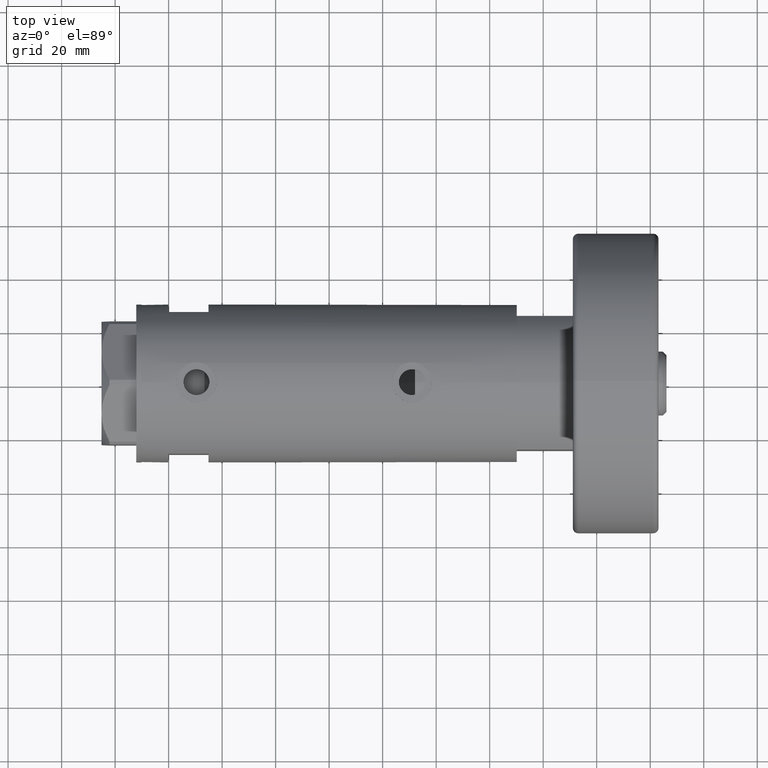
[diagram: clean part render]
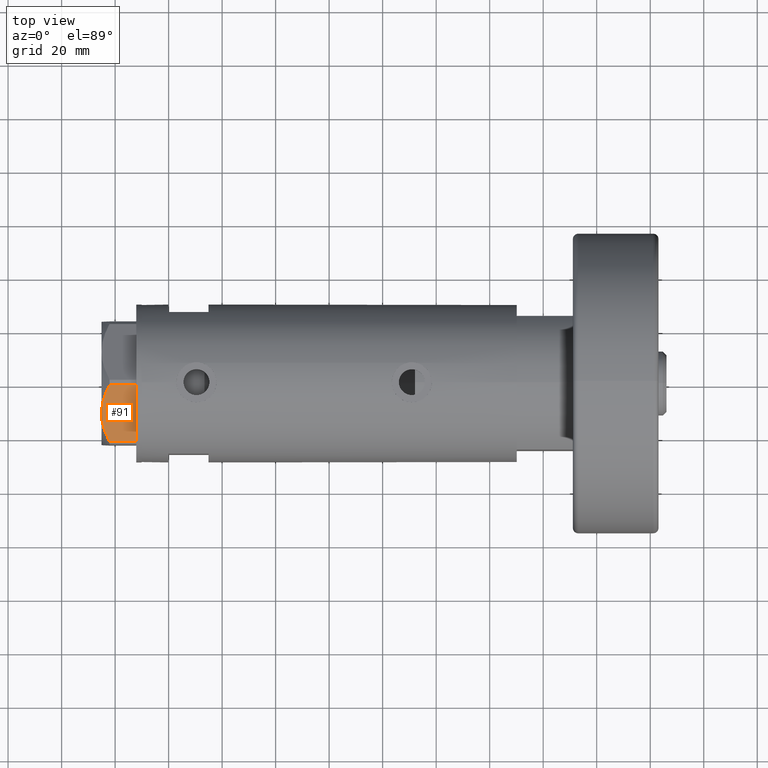
[diagram: same view with one face highlighted and labeled with its STEP entity id]
A machine part, top view. The second image highlights one B-rep face of the part: STEP entity #91.
In plain terms, the highlighted planar face has unit normal (-0, 0.5, -0.866).
Its self-contained STEP definition (entity closure, byte-faithful):
#91 = ADVANCED_FACE ( 'NONE', ( #4126 ), #4102, .F. ) ;
#138 = ORIENTED_EDGE ( 'NONE', *, *, #5906, .T. ) ;
#149 = VERTEX_POINT ( 'NONE', #2462 ) ;
#191 = DIRECTION ( 'NONE',  ( -0.8660254037844415942, 0.4999999999999950040, 0.000000000000000000 ) ) ;
#237 = CARTESIAN_POINT ( 'NONE',  ( -3.925137811029895563, -24.29193301091818213, 11.39727285399141365 ) ) ;
#341 = VERTEX_POINT ( 'NONE', #2753 ) ;
#416 = ORIENTED_EDGE ( 'NONE', *, *, #2570, .F. ) ;
#487 = DIRECTION ( 'NONE',  ( 0.8660254037844415942, -0.4999999999999950595, 0.000000000000000000 ) ) ;
#517 = EDGE_CURVE ( 'NONE', #4207, #341, #3599, .T. ) ;
#563 = CARTESIAN_POINT ( 'NONE',  ( -11.49999999999990585, -19.91858428704219364, 13.00000000000000000 ) ) ;
#692 = CARTESIAN_POINT ( 'NONE',  ( -1.799196345396643304, -25.51934588838291162, 10.43131750950939640 ) ) ;
#724 = CARTESIAN_POINT ( 'NONE',  ( -2.640413878806567638, -25.03366871902166935, 10.84420102443839262 ) ) ;
#800 = CARTESIAN_POINT ( 'NONE',  ( -13.34348161667001698, -18.85424967941148822, 12.90784227772843806 ) ) ;
#1210 = VECTOR ( 'NONE', #5366, 1000.000000000000000 ) ;
#1288 = CARTESIAN_POINT ( 'NONE',  ( -22.99999999999990408, -13.27905619136147841, 13.00000000000000000 ) ) ;
#1323 = CARTESIAN_POINT ( 'NONE',  ( -22.03005154776132102, -13.83905619136147536, 0.000000000000000000 ) ) ;
#1426 = CARTESIAN_POINT ( 'NONE',  ( -11.49999999999990585, -19.91858428704219364, 13.00000000000000000 ) ) ;
#1512 = CARTESIAN_POINT ( 'NONE',  ( -9.678244919010003500, -20.97037507344916563, 13.00000000000009237 ) ) ;
#1572 = EDGE_CURVE ( 'NONE', #1938, #341, #5108, .T. ) ;
#1689 = ORIENTED_EDGE ( 'NONE', *, *, #517, .F. ) ;
#1711 = CARTESIAN_POINT ( 'NONE',  ( -20.37350567916426058, -14.79546339452093662, 10.87778242614345992 ) ) ;
#1829 = EDGE_CURVE ( 'NONE', #2571, #1938, #5945, .T. ) ;
#1932 = LINE ( 'NONE', #4398, #1210 ) ;
#1938 = VERTEX_POINT ( 'NONE', #4332 ) ;
#2174 = DIRECTION ( 'NONE',  ( 0.4999999999999950040, 0.8660254037844415942, -0.000000000000000000 ) ) ;
#2197 = CARTESIAN_POINT ( 'NONE',  ( -4.357207709415887642, -24.04247733877630466, 11.57055225522972819 ) ) ;
#2220 = ORIENTED_EDGE ( 'NONE', *, *, #1572, .T. ) ;
#2462 = CARTESIAN_POINT ( 'NONE',  ( -22.03005154776146313, -13.83905619136139364, 9.983800287807548912 ) ) ;
#2570 = EDGE_CURVE ( 'NONE', #149, #4207, #5243, .T. ) ;
#2571 = VERTEX_POINT ( 'NONE', #1323 ) ;
#2692 = AXIS2_PLACEMENT_3D ( 'NONE', #1288, #2174, #191 ) ;
#2694 = CARTESIAN_POINT ( 'NONE',  ( -13.80210138309694479, -18.58946543380922378, 12.85271263895580418 ) ) ;
#2714 = CARTESIAN_POINT ( 'NONE',  ( -0.9699484522383853280, -25.99811238272275205, 9.983800287807632401 ) ) ;
#2753 = CARTESIAN_POINT ( 'NONE',  ( -0.9699484522383853280, -25.99811238272275205, 9.983800287807632401 ) ) ;
#2782 = CARTESIAN_POINT ( 'NONE',  ( -18.67981377008999644, -15.77331687414923422, 11.62937486882610827 ) ) ;
#2818 = CARTESIAN_POINT ( 'NONE',  ( -12.41906678023023325, -19.38796083407287085, 12.98168640760950865 ) ) ;
#2909 = VECTOR ( 'NONE', #6070, 1000.000000000000000 ) ;
#3170 = CARTESIAN_POINT ( 'NONE',  ( -7.884645426989515649, -22.00591022298554833, 12.70765172847701052 ) ) ;
#3302 = CARTESIAN_POINT ( 'NONE',  ( -15.16323225988328893, -17.80361615569431777, 12.63731396715695077 ) ) ;
#3599 = B_SPLINE_CURVE_WITH_KNOTS ( 'NONE', 3,
 ( #563, #1512, #3170, #5140, #5024, #2197, #237, #724, #692, #2714 ),
 .UNSPECIFIED., .F., .F.,
 ( 4, 2, 2, 2, 4 ),
 ( 0.01376519981810312224, 0.01998941321701588891, 0.02154546656674407451, 0.02310151991647226705, 0.02621362661592864171 ),
 .UNSPECIFIED. ) ;
#4102 = PLANE ( 'NONE',  #2692 ) ;
#4126 = FACE_OUTER_BOUND ( 'NONE', #4136, .T. ) ;
#4136 = EDGE_LOOP ( 'NONE', ( #416, #138, #6193, #2220, #1689 ) ) ;
#4207 = VERTEX_POINT ( 'NONE', #1426 ) ;
#4332 = CARTESIAN_POINT ( 'NONE',  ( -0.9699484522383873264, -25.99811238272275205, 0.000000000000000000 ) ) ;
#4398 = CARTESIAN_POINT ( 'NONE',  ( -22.03005154776132102, -13.83905619136147536, 13.00000000000000000 ) ) ;
#4731 = CARTESIAN_POINT ( 'NONE',  ( -11.95865151389046588, -19.65378171203314395, 13.00000000000009948 ) ) ;
#4771 = CARTESIAN_POINT ( 'NONE',  ( -11.49999999999990585, -19.91858428704219364, 13.00000000000000000 ) ) ;
#5024 = CARTESIAN_POINT ( 'NONE',  ( -5.229981517797923196, -23.53858114556527781, 11.89212886775844602 ) ) ;
#5045 = CARTESIAN_POINT ( 'NONE',  ( -0.9699484522383907681, -25.99811238272274494, 13.00000000000000000 ) ) ;
#5108 = LINE ( 'NONE', #5045, #2909 ) ;
#5140 = CARTESIAN_POINT ( 'NONE',  ( -5.671686373602661035, -23.28356272816404271, 12.04068176582933702 ) ) ;
#5154 = CARTESIAN_POINT ( 'NONE',  ( -16.05322244309625290, -17.28978008384019915, 12.42689993760378542 ) ) ;
#5190 = CARTESIAN_POINT ( 'NONE',  ( -22.03005154776146313, -13.83905619136139364, 9.983800287807548912 ) ) ;
#5243 = B_SPLINE_CURVE_WITH_KNOTS ( 'NONE', 3,
 ( #5190, #1711, #2782, #5154, #3302, #2694, #800, #2818, #4731, #4771 ),
 .UNSPECIFIED., .F., .F.,
 ( 4, 2, 2, 2, 4 ),
 ( 0.001228959670438515206, 0.007497079744270818830, 0.01063113978118697053, 0.01219816979964504639, 0.01376519981810312224 ),
 .UNSPECIFIED. ) ;
#5269 = VECTOR ( 'NONE', #487, 1000.000000000000000 ) ;
#5366 = DIRECTION ( 'NONE',  ( -0.000000000000000000, 0.000000000000000000, -1.000000000000000000 ) ) ;
#5906 = EDGE_CURVE ( 'NONE', #149, #2571, #1932, .T. ) ;
#5913 = CARTESIAN_POINT ( 'NONE',  ( -22.99999999999990408, -13.27905619136147841, 0.000000000000000000 ) ) ;
#5945 = LINE ( 'NONE', #5913, #5269 ) ;
#6070 = DIRECTION ( 'NONE',  ( 0.000000000000000000, 0.000000000000000000, 1.000000000000000000 ) ) ;
#6193 = ORIENTED_EDGE ( 'NONE', *, *, #1829, .T. ) ;